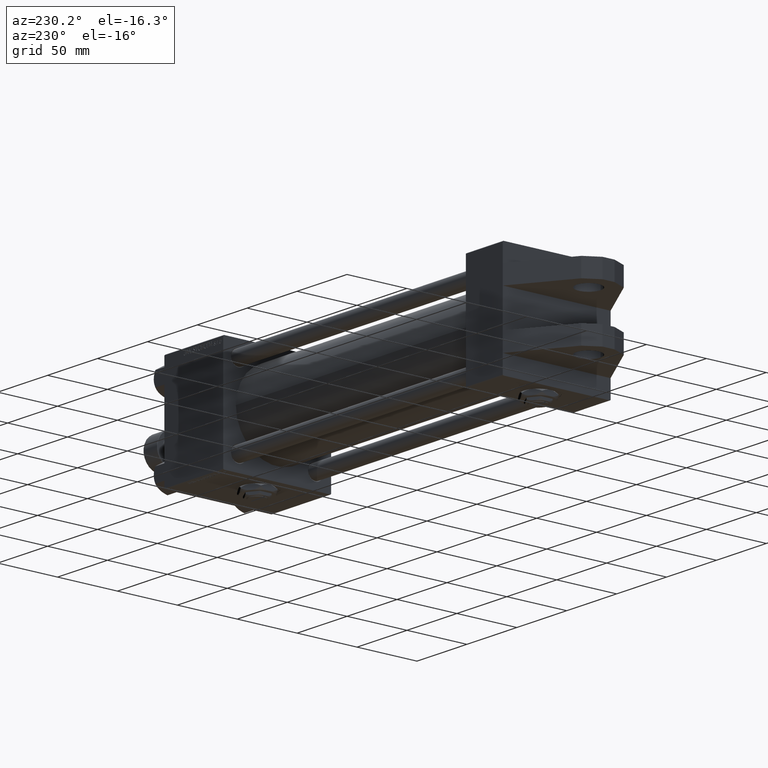
[diagram: clean part render]
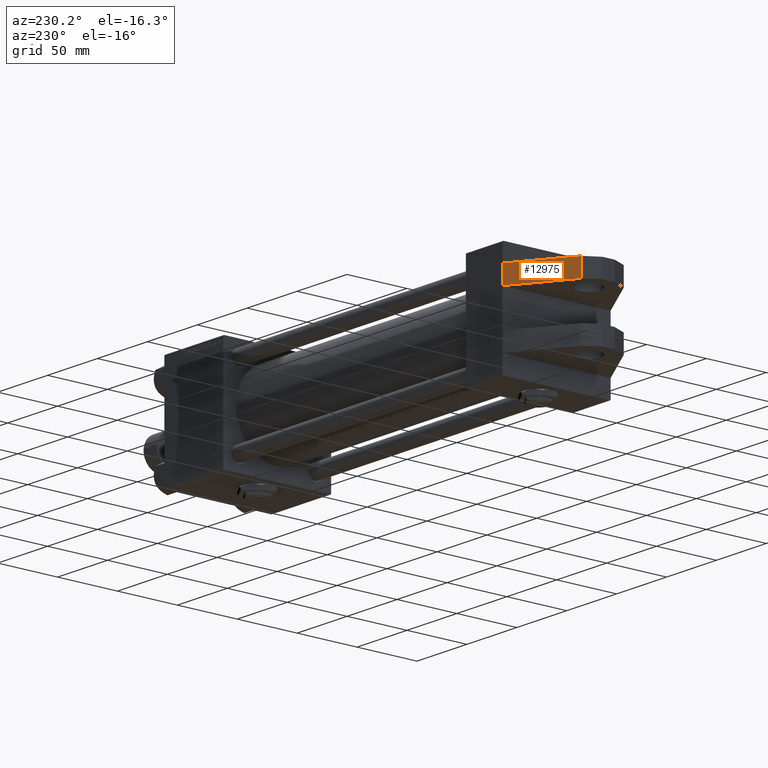
[diagram: same view with one face highlighted and labeled with its STEP entity id]
A machine part, auxiliary view. The second image highlights one B-rep face of the part: STEP entity #12975.
In plain terms, the highlighted planar face has unit normal (-0.5302, 0.8479, 0).
Its self-contained STEP definition (entity closure, byte-faithful):
#944 = DIRECTION ( 'NONE',  ( -0.5301971335335949886, 0.000000000000000000, 0.8478744008358546358 ) ) ;
#1362 = DIRECTION ( 'NONE',  ( 0.8478744008358545248, 0.000000000000000000, 0.5301971335335947666 ) ) ;
#2088 = ORIENTED_EDGE ( 'NONE', *, *, #30497, .T. ) ;
#4298 = CARTESIAN_POINT ( 'NONE',  ( 0.000000000000000000, -30.00000000000000000, 45.00000000000000000 ) ) ;
#4352 = VERTEX_POINT ( 'NONE', #16395 ) ;
#4391 = FACE_OUTER_BOUND ( 'NONE', #30380, .T. ) ;
#7820 = DIRECTION ( 'NONE',  ( 0.8478744008358545248, 0.000000000000000000, 0.5301971335335948776 ) ) ;
#9542 = LINE ( 'NONE', #17469, #24351 ) ;
#11412 = DIRECTION ( 'NONE',  ( 0.8478744008358545248, 0.000000000000000000, 0.5301971335335947666 ) ) ;
#12745 = DIRECTION ( 'NONE',  ( -0.000000000000000000, 1.000000000000000000, -0.000000000000000000 ) ) ;
#12975 = ADVANCED_FACE ( 'NONE', ( #4391 ), #44572, .T. ) ;
#14965 = VECTOR ( 'NONE', #12745, 1000.000000000000000 ) ;
#16395 = CARTESIAN_POINT ( 'NONE',  ( 0.000000000000000000, -29.99999999999997158, 45.00000000000000000 ) ) ;
#17469 = CARTESIAN_POINT ( 'NONE',  ( -44.91602078046192048, -15.00000000000000000, 16.91288539427591431 ) ) ;
#18533 = VECTOR ( 'NONE', #11412, 1000.000000000000114 ) ;
#18540 = AXIS2_PLACEMENT_3D ( 'NONE', #28962, #944, #7820 ) ;
#18610 = CARTESIAN_POINT ( 'NONE',  ( -44.91602078046192048, -30.00000000000000000, 16.91288539427591431 ) ) ;
#19022 = ORIENTED_EDGE ( 'NONE', *, *, #45829, .F. ) ;
#20473 = ORIENTED_EDGE ( 'NONE', *, *, #32297, .F. ) ;
#22879 = CARTESIAN_POINT ( 'NONE',  ( -44.91602078046192048, -30.00000000000000000, 16.91288539427591431 ) ) ;
#24238 = ORIENTED_EDGE ( 'NONE', *, *, #36045, .T. ) ;
#24351 = VECTOR ( 'NONE', #1362, 1000.000000000000114 ) ;
#26615 = CARTESIAN_POINT ( 'NONE',  ( 0.000000000000000000, -15.00000000000000000, 45.00000000000000000 ) ) ;
#28962 = CARTESIAN_POINT ( 'NONE',  ( -44.91602078046192048, -30.00000000000000000, 16.91288539427591431 ) ) ;
#30380 = EDGE_LOOP ( 'NONE', ( #20473, #19022, #24238, #2088 ) ) ;
#30497 = EDGE_CURVE ( 'NONE', #4352, #34278, #45521, .T. ) ;
#32297 = EDGE_CURVE ( 'NONE', #51745, #34278, #9542, .T. ) ;
#34278 = VERTEX_POINT ( 'NONE', #26615 ) ;
#36045 = EDGE_CURVE ( 'NONE', #45556, #4352, #39705, .T. ) ;
#39705 = LINE ( 'NONE', #47640, #18533 ) ;
#40768 = VECTOR ( 'NONE', #51644, 1000.000000000000000 ) ;
#43171 = CARTESIAN_POINT ( 'NONE',  ( -44.91602078046192048, -15.00000000000000000, 16.91288539427591431 ) ) ;
#44572 = PLANE ( 'NONE',  #18540 ) ;
#45521 = LINE ( 'NONE', #4298, #14965 ) ;
#45556 = VERTEX_POINT ( 'NONE', #22879 ) ;
#45829 = EDGE_CURVE ( 'NONE', #45556, #51745, #47673, .T. ) ;
#47640 = CARTESIAN_POINT ( 'NONE',  ( -44.91602078046192048, -30.00000000000000000, 16.91288539427591431 ) ) ;
#47673 = LINE ( 'NONE', #18610, #40768 ) ;
#51644 = DIRECTION ( 'NONE',  ( -0.000000000000000000, 1.000000000000000000, -0.000000000000000000 ) ) ;
#51745 = VERTEX_POINT ( 'NONE', #43171 ) ;